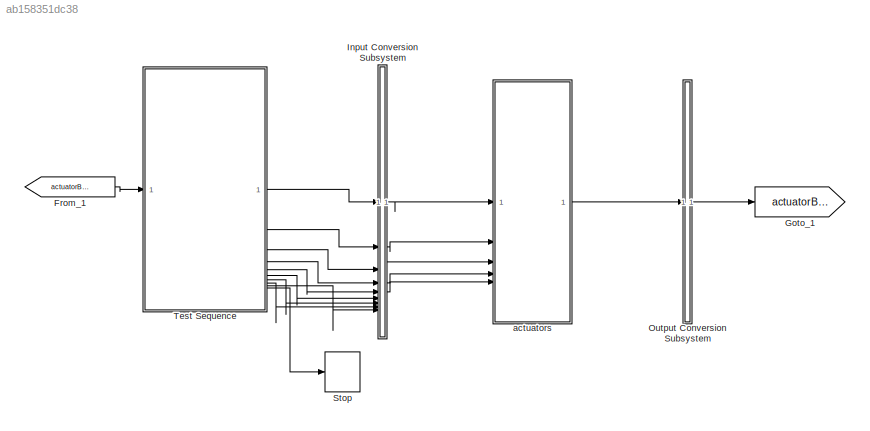
MODEL slx_ab158351dc38
KIND model
BLOCK [From] From_1
  GotoTag = actuatorBus
BLOCK [Goto] Goto_1
  GotoTag = actuatorBus
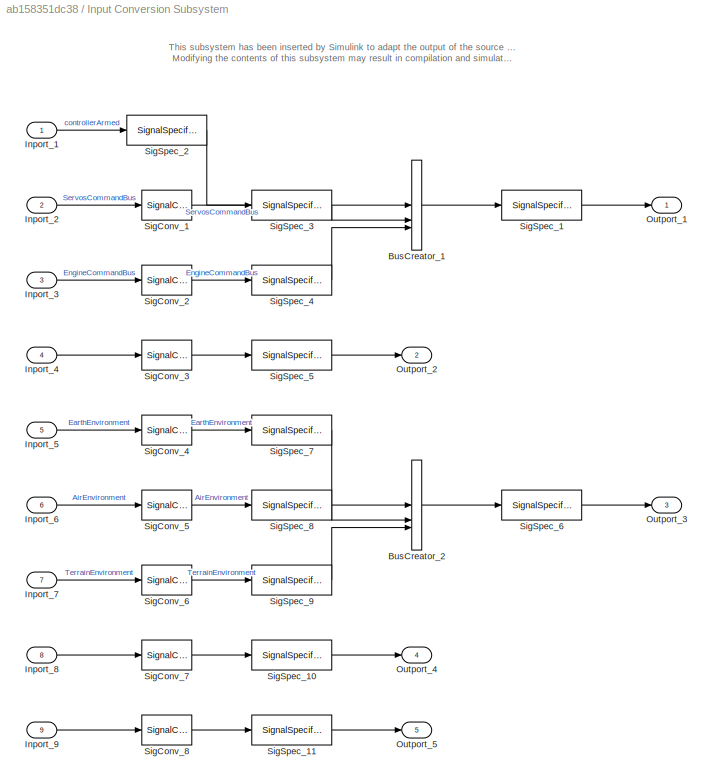
BLOCK [SubSystem] Input Conversion Subsystem
  AttributesFormatString = %<Description>
  Description = Signal spec.\nand routing
  Permissions = ReadOnly
  PermitHierarchicalResolution = ExplicitOnly
  Tag = __SLT_ICS__
  TreatAsGroupedWhenPropagatingVariantConditions = off
  UserDataPersistent = on
BLOCK [BusCreator] Input Conversion Subsystem/BusCreator_1
  InheritFromInputs = on
  Inputs = 3
  OutDataTypeStr = Bus: ActuatorCommandBus
BLOCK [BusCreator] Input Conversion Subsystem/BusCreator_2
  InheritFromInputs = on
  Inputs = 3
  OutDataTypeStr = Bus: EnvironmentBus
BLOCK [Inport] Input Conversion Subsystem/Inport_1
BLOCK [Inport] Input Conversion Subsystem/Inport_2
  Port = 2
BLOCK [Inport] Input Conversion Subsystem/Inport_3
  Port = 3
BLOCK [Inport] Input Conversion Subsystem/Inport_4
  Port = 4
BLOCK [Inport] Input Conversion Subsystem/Inport_5
  Port = 5
BLOCK [Inport] Input Conversion Subsystem/Inport_6
  Port = 6
BLOCK [Inport] Input Conversion Subsystem/Inport_7
  Port = 7
BLOCK [Inport] Input Conversion Subsystem/Inport_8
  Port = 8
BLOCK [Inport] Input Conversion Subsystem/Inport_9
  Port = 9
BLOCK [Outport] Input Conversion Subsystem/Outport_1
BLOCK [Outport] Input Conversion Subsystem/Outport_2
  Port = 2
BLOCK [Outport] Input Conversion Subsystem/Outport_3
  Port = 3
BLOCK [Outport] Input Conversion Subsystem/Outport_4
  Port = 4
BLOCK [Outport] Input Conversion Subsystem/Outport_5
  Port = 5
BLOCK [SignalConversion] Input Conversion Subsystem/SigConv_1
  ConversionOutput = Nonvirtual bus
  OverrideOpt = off
BLOCK [SignalConversion] Input Conversion Subsystem/SigConv_2
  ConversionOutput = Nonvirtual bus
  OverrideOpt = off
BLOCK [SignalConversion] Input Conversion Subsystem/SigConv_3
  ConversionOutput = Virtual bus
  OverrideOpt = off
BLOCK [SignalConversion] Input Conversion Subsystem/SigConv_4
  ConversionOutput = Nonvirtual bus
  OverrideOpt = off
BLOCK [SignalConversion] Input Conversion Subsystem/SigConv_5
  ConversionOutput = Nonvirtual bus
  OverrideOpt = off
BLOCK [SignalConversion] Input Conversion Subsystem/SigConv_6
  ConversionOutput = Nonvirtual bus
  OverrideOpt = off
BLOCK [SignalConversion] Input Conversion Subsystem/SigConv_7
  ConversionOutput = Virtual bus
  OverrideOpt = off
BLOCK [SignalConversion] Input Conversion Subsystem/SigConv_8
  ConversionOutput = Virtual bus
  OverrideOpt = off
BLOCK [SignalSpecification] Input Conversion Subsystem/SigSpec_1
  OutDataTypeStr = Bus: ActuatorCommandBus
  SampleTime = [-1, 0]
BLOCK [SignalSpecification] Input Conversion Subsystem/SigSpec_10
  OutDataTypeStr = Bus: BodyStateBus
BLOCK [SignalSpecification] Input Conversion Subsystem/SigSpec_11
  OutDataTypeStr = Bus: FailureBus
BLOCK [SignalSpecification] Input Conversion Subsystem/SigSpec_2
  Dimensions = [1]
  OutDataTypeStr = double
  SignalType = real
  VarSizeSig = No
BLOCK [SignalSpecification] Input Conversion Subsystem/SigSpec_3
  BusOutputAsStruct = on
  Dimensions = [1]
  OutDataTypeStr = Bus: ServosCommandBus
  SignalType = real
  VarSizeSig = No
BLOCK [SignalSpecification] Input Conversion Subsystem/SigSpec_4
  BusOutputAsStruct = on
  Dimensions = [1]
  OutDataTypeStr = Bus: EngineCommandBus
  SignalType = real
  VarSizeSig = No
BLOCK [SignalSpecification] Input Conversion Subsystem/SigSpec_5
  OutDataTypeStr = Bus: AirDataBus
BLOCK [SignalSpecification] Input Conversion Subsystem/SigSpec_6
  OutDataTypeStr = Bus: EnvironmentBus
  SampleTime = [-1, 0]
BLOCK [SignalSpecification] Input Conversion Subsystem/SigSpec_7
  BusOutputAsStruct = on
  Dimensions = [1]
  OutDataTypeStr = Bus: EarthEnvironmentBus
  SignalType = real
  VarSizeSig = No
BLOCK [SignalSpecification] Input Conversion Subsystem/SigSpec_8
  BusOutputAsStruct = on
  Dimensions = [1]
  OutDataTypeStr = Bus: AirEnvironmentBus
  SignalType = real
  VarSizeSig = No
BLOCK [SignalSpecification] Input Conversion Subsystem/SigSpec_9
  BusOutputAsStruct = on
  Dimensions = [1]
  OutDataTypeStr = Bus: TerrainEnvironmentBus
  SignalType = real
  VarSizeSig = No
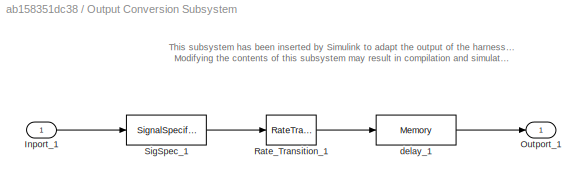
BLOCK [SubSystem] Output Conversion Subsystem
  AttributesFormatString = %<Description>
  Description = Signal spec.\nand routing
  Permissions = ReadOnly
  PermitHierarchicalResolution = ExplicitOnly
  Tag = __SLT_OCS__
  TreatAsGroupedWhenPropagatingVariantConditions = off
  UserDataPersistent = on
BLOCK [Inport] Output Conversion Subsystem/Inport_1
BLOCK [Outport] Output Conversion Subsystem/Outport_1
BLOCK [RateTransition] Output Conversion Subsystem/Rate_Transition_1
  OutPortSampleTimeOpt = Inherit
BLOCK [SignalSpecification] Output Conversion Subsystem/SigSpec_1
  Dimensions = [1]
  OutDataTypeStr = Bus: ActuatorBus
  SignalType = real
  VarSizeSig = No
BLOCK [Memory] Output Conversion Subsystem/delay_1
  InitialCondition = IC1
BLOCK [Stop] Stop
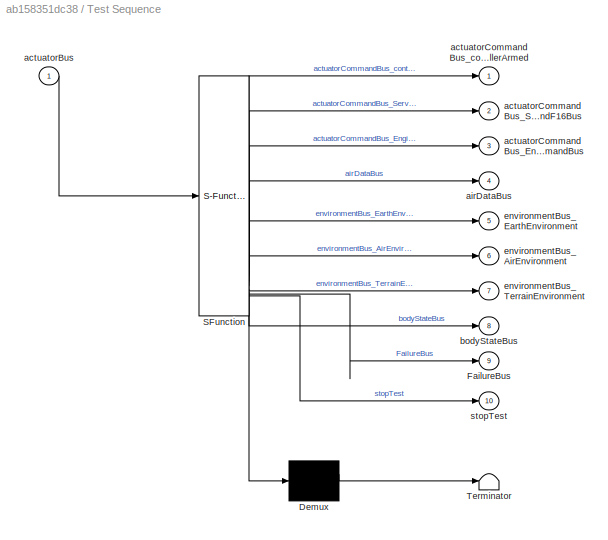
BLOCK [SubSystem] Test Sequence
  ErrorFcn = Stateflow.Translate.translate
  PermitHierarchicalResolution = ExplicitOnly
  SFBlockType = Test Sequence
  ShowPortLabels = none
  TreatAsAtomicUnit = on
BLOCK [Demux] Test Sequence/ Demux 
  Outputs = 1
BLOCK [S-Function] Test Sequence/ SFunction 
  EnableBusSupport = on
  FunctionName = sf_sfun
  Parameters = 1,aileronDeflRateLimit_degps,elevatorDeflRateLimit_degps,maxAilDefl_deg,maxElevatorDefl_deg,maxRudderDefl_deg,rudderDeflRateLimit_degps,stepSize_s
  PortCounts = [1 11]
  SFcnIsStateOwnerBlock = off
  SFunctionDeploymentMode = off
  Tag = Stateflow S-Function 4
BLOCK [Terminator] Test Sequence/ Terminator 
BLOCK [Outport] Test Sequence/FailureBus
  Port = 9
BLOCK [Inport] Test Sequence/actuatorBus
BLOCK [Outport] Test Sequence/actuatorCommandBus_EngineCommandBus
  Port = 3
BLOCK [Outport] Test Sequence/actuatorCommandBus_ServosCommandF16Bus
  Port = 2
BLOCK [Outport] Test Sequence/actuatorCommandBus_controllerArmed
BLOCK [Outport] Test Sequence/airDataBus
  Port = 4
BLOCK [Outport] Test Sequence/bodyStateBus
  Port = 8
BLOCK [Outport] Test Sequence/environmentBus_AirEnvironment
  Port = 6
BLOCK [Outport] Test Sequence/environmentBus_EarthEnvironment
  Port = 5
BLOCK [Outport] Test Sequence/environmentBus_TerrainEnvironment
  Port = 7
BLOCK [Outport] Test Sequence/stopTest
  Port = 10
BLOCK [ModelReference] actuators
  ModelNameDialog = actuators
  ModelReferenceVersion = 1.105
ANNOTATION Input Conversion Subsystem: This subsystem has been inserted by Simulink to adapt the output of the source blocks to the interface required by the harnessed component. Modifying the contents of this subsystem may result in compilation and simulation failure.
ANNOTATION Output Conversion Subsystem: This subsystem has been inserted by Simulink to adapt the output of the harnessed component to the interface required by the sink blocks. Modifying the contents of this subsystem may result in compilation and simulation failure.
LINE From_1:1 -> Test Sequence:1
LINE Input Conversion Subsystem/BusCreator_1:1 -> Input Conversion Subsystem/SigSpec_1:1
LINE Input Conversion Subsystem/BusCreator_2:1 -> Input Conversion Subsystem/SigSpec_6:1
LINE Input Conversion Subsystem/Inport_1:1 -> Input Conversion Subsystem/SigSpec_2:1
LINE Input Conversion Subsystem/Inport_2:1 -> Input Conversion Subsystem/SigConv_1:1
LINE Input Conversion Subsystem/Inport_3:1 -> Input Conversion Subsystem/SigConv_2:1
LINE Input Conversion Subsystem/Inport_4:1 -> Input Conversion Subsystem/SigConv_3:1
LINE Input Conversion Subsystem/Inport_5:1 -> Input Conversion Subsystem/SigConv_4:1
LINE Input Conversion Subsystem/Inport_6:1 -> Input Conversion Subsystem/SigConv_5:1
LINE Input Conversion Subsystem/Inport_7:1 -> Input Conversion Subsystem/SigConv_6:1
LINE Input Conversion Subsystem/Inport_8:1 -> Input Conversion Subsystem/SigConv_7:1
LINE Input Conversion Subsystem/Inport_9:1 -> Input Conversion Subsystem/SigConv_8:1
LINE Input Conversion Subsystem/SigConv_1:1 -> Input Conversion Subsystem/SigSpec_3:1
LINE Input Conversion Subsystem/SigConv_2:1 -> Input Conversion Subsystem/SigSpec_4:1
LINE Input Conversion Subsystem/SigConv_3:1 -> Input Conversion Subsystem/SigSpec_5:1
LINE Input Conversion Subsystem/SigConv_4:1 -> Input Conversion Subsystem/SigSpec_7:1
LINE Input Conversion Subsystem/SigConv_5:1 -> Input Conversion Subsystem/SigSpec_8:1
LINE Input Conversion Subsystem/SigConv_6:1 -> Input Conversion Subsystem/SigSpec_9:1
LINE Input Conversion Subsystem/SigConv_7:1 -> Input Conversion Subsystem/SigSpec_10:1
LINE Input Conversion Subsystem/SigConv_8:1 -> Input Conversion Subsystem/SigSpec_11:1
LINE Input Conversion Subsystem/SigSpec_10:1 -> Input Conversion Subsystem/Outport_4:1
LINE Input Conversion Subsystem/SigSpec_11:1 -> Input Conversion Subsystem/Outport_5:1
LINE Input Conversion Subsystem/SigSpec_1:1 -> Input Conversion Subsystem/Outport_1:1
LINE Input Conversion Subsystem/SigSpec_2:1 -> Input Conversion Subsystem/BusCreator_1:1
LINE Input Conversion Subsystem/SigSpec_3:1 -> Input Conversion Subsystem/BusCreator_1:2
LINE Input Conversion Subsystem/SigSpec_4:1 -> Input Conversion Subsystem/BusCreator_1:3
LINE Input Conversion Subsystem/SigSpec_5:1 -> Input Conversion Subsystem/Outport_2:1
LINE Input Conversion Subsystem/SigSpec_6:1 -> Input Conversion Subsystem/Outport_3:1
LINE Input Conversion Subsystem/SigSpec_7:1 -> Input Conversion Subsystem/BusCreator_2:1
LINE Input Conversion Subsystem/SigSpec_8:1 -> Input Conversion Subsystem/BusCreator_2:2
LINE Input Conversion Subsystem/SigSpec_9:1 -> Input Conversion Subsystem/BusCreator_2:3
LINE Input Conversion Subsystem:1 -> actuators:1
LINE Input Conversion Subsystem:2 -> actuators:2
LINE Input Conversion Subsystem:3 -> actuators:3
LINE Input Conversion Subsystem:4 -> actuators:4
LINE Input Conversion Subsystem:5 -> actuators:5
LINE Output Conversion Subsystem/Inport_1:1 -> Output Conversion Subsystem/SigSpec_1:1
LINE Output Conversion Subsystem/Rate_Transition_1:1 -> Output Conversion Subsystem/delay_1:1
LINE Output Conversion Subsystem/SigSpec_1:1 -> Output Conversion Subsystem/Rate_Transition_1:1
LINE Output Conversion Subsystem/delay_1:1 -> Output Conversion Subsystem/Outport_1:1
LINE Output Conversion Subsystem:1 -> Goto_1:1
LINE Test Sequence:1 -> Input Conversion Subsystem:1
LINE Test Sequence:10 -> Stop:1
LINE Test Sequence:2 -> Input Conversion Subsystem:2
LINE Test Sequence:3 -> Input Conversion Subsystem:3
LINE Test Sequence:4 -> Input Conversion Subsystem:4
LINE Test Sequence:5 -> Input Conversion Subsystem:5
LINE Test Sequence:6 -> Input Conversion Subsystem:6
LINE Test Sequence:7 -> Input Conversion Subsystem:7
LINE Test Sequence:8 -> Input Conversion Subsystem:8
LINE Test Sequence:9 -> Input Conversion Subsystem:9
LINE actuators:1 -> Output Conversion Subsystem:1
CHART Test Sequence states=24 transitions=24
  STATE_LABEL 'Scenario_1'
  STATE_LABEL 'Initialize\n\n%% Initialize data outputs.\nactuatorCommandBus_controllerArmed = 0;\nactuatorCommandBus_ServosCommandF16Bus.ServosCommandF16Bus.cmdAileron_nd = 0;\nactuatorCommandBus_ServosCommandF16Bus.ServosCommandF16Bus.cmdElevator_nd = 0;\nactuatorCommandBus_ServosCommandF16Bus.ServosCommandF16Bus.cmdRudder_nd = 0;\nactuatorCommandBus_EngineCommandBus.cmdThrottle_unit = 0;\nairDataBus.airspeedInBody_mp...<+1285ch>'
  STATE_LABEL 'verifyControllerDisarmed\nverify(isClose(actuatorBus.PropulsionBus.angVel_radps, 0))\nverify(isClose(actuatorBus.PropulsionBus.EngineForcesMomentsBus.forcesInBody_N(1), 0))\nverify(isClose(actuatorBus.PropulsionBus.EngineForcesMomentsBus.forcesInBody_N(2), 0))\nverify(isClose(actuatorBus.PropulsionBus.EngineForcesMomentsBus.forcesInBody_N(3), 0))\nverify(isClose(actuatorBus.PropulsionBus.EngineForcesMo...<+420ch>'
  STATE_LABEL 'armController\nactuatorCommandBus_controllerArmed = 1;\n'
  STATE_LABEL 'verifyControllerArmed\nverify(isClose(actuatorBus.PropulsionBus.angVel_radps, 0))\nverify(isClose(actuatorBus.PropulsionBus.EngineForcesMomentsBus.forcesInBody_N(1), 0))\nverify(isClose(actuatorBus.PropulsionBus.EngineForcesMomentsBus.forcesInBody_N(2), 0))\nverify(isClose(actuatorBus.PropulsionBus.EngineForcesMomentsBus.forcesInBody_N(3), 0))\nverify(isClose(actuatorBus.PropulsionBus.EngineForcesMomen...<+416ch>'
  STATE_LABEL 'maxAileron\nactuatorCommandBus_ServosCommandF16Bus.ServosCommandF16Bus.cmdAileron_nd = 1.1; %This is a normalized value\npreviousAileronCmd = actuatorCommandBus_ServosCommandF16Bus.ServosCommandF16Bus.cmdAileron_nd;\n'
  STATE_LABEL 'verifyAileronRate\naileronCmdRate = (actuatorCommandBus_ServosCommandF16Bus.ServosCommandF16Bus.cmdAileron_nd - previousAileronCmd) * maxAilDefl_deg / stepSize_s;\nverify( aileronCmdRate <= aileronDeflRateLimit_degps)\npreviousAileronCmd = actuatorCommandBus_ServosCommandF16Bus.ServosCommandF16Bus.cmdAileron_nd;'
  STATE_LABEL "verifyAileronLimit\nverify(isClose(actuatorBus.ServosBus.ServosF16Bus.posAileron_rad, deg2rad(maxAilDefl_deg)), 'atol', 0.0044) % Tolerance of 0.25 deg used. Arbitrary"
  STATE_LABEL 'maxNegAileron\nactuatorCommandBus_ServosCommandF16Bus.ServosCommandF16Bus.cmdAileron_nd = -1.1;\npreviousAileronCmd = actuatorCommandBus_ServosCommandF16Bus.ServosCommandF16Bus.cmdAileron_nd;'
  STATE_LABEL 'verifyNegAileronRate\naileronCmdRate = (actuatorCommandBus_ServosCommandF16Bus.ServosCommandF16Bus.cmdAileron_nd - previousAileronCmd) * maxAilDefl_deg / stepSize_s;\nverify( abs(aileronCmdRate) <= aileronDeflRateLimit_degps)\npreviousAileronCmd = actuatorCommandBus_ServosCommandF16Bus.ServosCommandF16Bus.cmdAileron_nd;'
  STATE_LABEL "verifyNegAileronLimit\nverify(isClose(actuatorBus.ServosBus.ServosF16Bus.posAileron_rad, -deg2rad(maxAilDefl_deg)), 'atol', 0.0044)"
  STATE_LABEL 'maxElevator\nactuatorCommandBus_ServosCommandF16Bus.ServosCommandF16Bus.cmdElevator_nd= 1.1;\npreviousElevCmd = actuatorCommandBus_ServosCommandF16Bus.ServosCommandF16Bus.cmdElevator_nd;\n'
  STATE_LABEL 'verifyElevatorRate\nelevatorCmdRate = (actuatorCommandBus_ServosCommandF16Bus.ServosCommandF16Bus.cmdElevator_nd- previousElevCmd ) *maxElevatorDefl_deg / stepSize_s;\nverify( elevatorCmdRate <= elevatorDeflRateLimit_degps)\npreviousElevCmd = actuatorCommandBus_ServosCommandF16Bus.ServosCommandF16Bus.cmdElevator_nd;'
  STATE_LABEL "verifyElevatorLimit\nverify(isClose(actuatorBus.ServosBus.ServosF16Bus.posElevator_rad, deg2rad(maxElevatorDefl_deg)), 'atol', 0.0044)"
  STATE_LABEL 'maxNegElevator\nactuatorCommandBus_ServosCommandF16Bus.ServosCommandF16Bus.cmdElevator_nd= -1.1;\npreviousElevCmd = actuatorCommandBus_ServosCommandF16Bus.ServosCommandF16Bus.cmdElevator_nd;'
  STATE_LABEL 'verifyNegElevatorRate\nelevatorCmdRate = (actuatorCommandBus_ServosCommandF16Bus.ServosCommandF16Bus.cmdElevator_nd- previousElevCmd ) * maxElevatorDefl_deg / stepSize_s;\nverify( abs(elevatorCmdRate ) <= elevatorDeflRateLimit_degps)\npreviousElevCmd = actuatorCommandBus_ServosCommandF16Bus.ServosCommandF16Bus.cmdElevator_nd;'
  STATE_LABEL "verifyNegElevatorLimit\nverify(isClose(actuatorBus.ServosBus.ServosF16Bus.posElevator_rad, -deg2rad(maxElevatorDefl_deg)), 'atol', 0.0044)"
  STATE_LABEL 'maxRudder\nactuatorCommandBus_ServosCommandF16Bus.ServosCommandF16Bus.cmdRudder_nd= 1.1;\npreviousRudderCmd = actuatorCommandBus_ServosCommandF16Bus.ServosCommandF16Bus.cmdRudder_nd;'
  STATE_LABEL 'verifyRudderRate\nrudderCmdRate = (actuatorCommandBus_ServosCommandF16Bus.ServosCommandF16Bus.cmdRudder_nd - previousRudderCmd) * maxRudderDefl_deg / stepSize_s;\nverify(rudderCmdRate <= rudderDeflRateLimit_degps)\npreviousRudderCmd = actuatorCommandBus_ServosCommandF16Bus.ServosCommandF16Bus.cmdRudder_nd;'
  STATE_LABEL "verifyRudderMax\nverify(isClose(actuatorBus.ServosBus.ServosF16Bus.posRudder_rad, deg2rad(maxRudderDefl_deg)), 'atol', 0.0044)"
  STATE_LABEL 'maxNegRudder\nactuatorCommandBus_ServosCommandF16Bus.ServosCommandF16Bus.cmdRudder_nd= -1.1;\npreviousRudderCmd = actuatorCommandBus_ServosCommandF16Bus.ServosCommandF16Bus.cmdRudder_nd;'
  STATE_LABEL 'verifyNegRudderRate\nrudderCmdRate = (actuatorCommandBus_ServosCommandF16Bus.ServosCommandF16Bus.cmdRudder_nd - previousRudderCmd) * maxRudderDefl_deg / stepSize_s;\nverify( abs(rudderCmdRate) <= rudderDeflRateLimit_degps)\npreviousRudderCmd = actuatorCommandBus_ServosCommandF16Bus.ServosCommandF16Bus.cmdRudder_nd;'
  STATE_LABEL "verifyNegRudderMax\nverify(isClose(actuatorBus.ServosBus.ServosF16Bus.posRudder_rad, -deg2rad(maxRudderDefl_deg)), 'atol', 0.0044)"
  STATE_LABEL 'EndTest\nstopTest = true;'
  STATE_LABEL '[\ntrue\n]'
  STATE_LABEL '[\nafter(2,sec)\n]'
  STATE_LABEL '[\nafter(1,sec)\n]'
  STATE_LABEL '[\nafter(1,sec)\n]'
  STATE_LABEL '[\nafter(1,tick)\n]'
  STATE_LABEL '[\nafter(1,sec)\n]'
  STATE_LABEL '[\nafter(1,sec)\n]'
  STATE_LABEL '[\nafter(1,sec)\n]'
  STATE_LABEL '[\nafter(1,sec)\n]'
  STATE_LABEL '[\nafter(1,sec)\n]'
  STATE_LABEL '[\nafter(1,tick)\n]'
  STATE_LABEL '[\nafter(3,sec)\n]'
  STATE_LABEL '[\nafter(1,sec)\n]'
  STATE_LABEL '[\nafter(1,tick)\n]'
  STATE_LABEL '[\nafter(1,sec)\n]'
  STATE_LABEL '[\nafter(1,sec)\n]'
